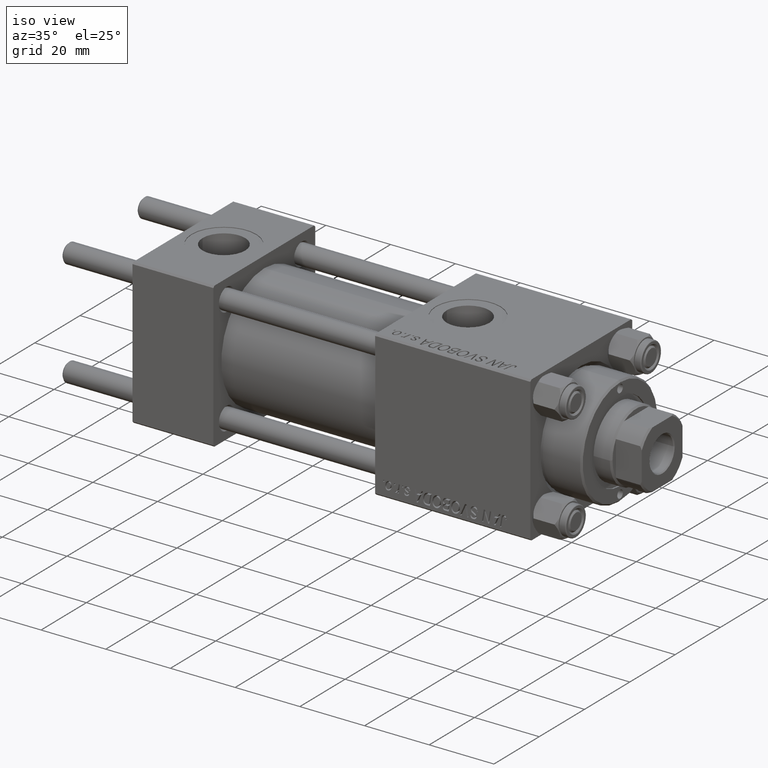
[diagram: clean part render]
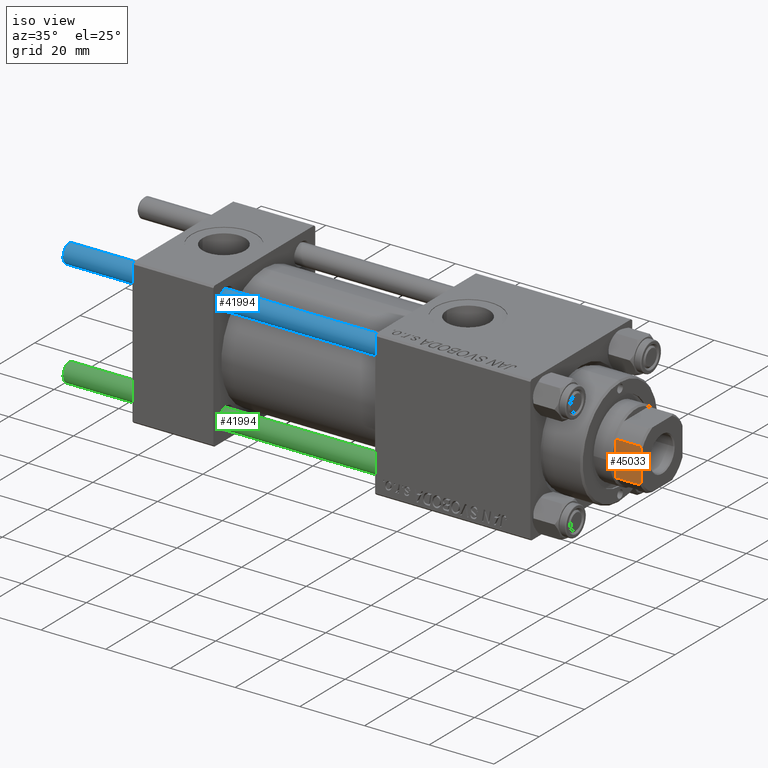
[diagram: same view with three faces highlighted in distinct colors, each labeled with its STEP entity id]
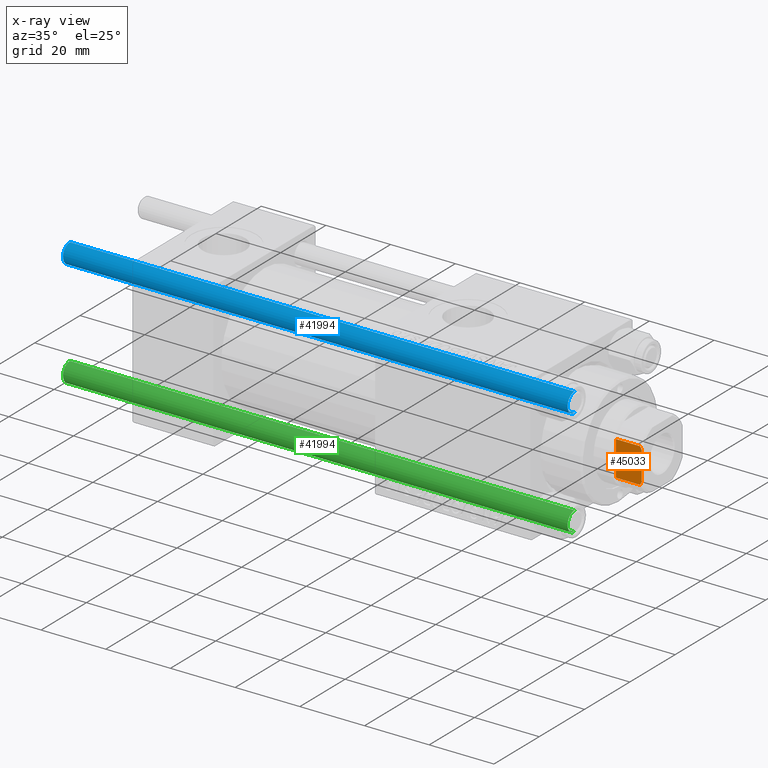
[diagram: x-ray of the same camera — body ghosted, the three highlighted faces saturated]
A machine part, iso view with three faces highlighted in distinct colors.
The next image is the same camera in x-ray (body ghosted, the three faces saturated) — at least one of them is partly hidden behind the body in this view.
Their STEP definitions:

[orange] entity #45033 — the highlighted planar face has unit normal (0, 1, 0).
#1934 = DIRECTION ( 'NONE',  ( -0.000000000000000000, -0.000000000000000000, 1.000000000000000000 ) ) ;
#2517 = CARTESIAN_POINT ( 'NONE',  ( 8.999999999999996447, 5.408326913195991459, 122.4999999999999716 ) ) ;
#2741 = ORIENTED_EDGE ( 'NONE', *, *, #45122, .T. ) ;
#3845 = ORIENTED_EDGE ( 'NONE', *, *, #50900, .F. ) ;
#5269 = VECTOR ( 'NONE', #15802, 1000.000000000000000 ) ;
#5454 = DIRECTION ( 'NONE',  ( -0.000000000000000000, -0.000000000000000000, 1.000000000000000000 ) ) ;
#6340 = ORIENTED_EDGE ( 'NONE', *, *, #34451, .T. ) ;
#7842 = ORIENTED_EDGE ( 'NONE', *, *, #28568, .F. ) ;
#7874 = VECTOR ( 'NONE', #41713, 1000.000000000000000 ) ;
#8446 = DIRECTION ( 'NONE',  ( 1.927470528863119049E-16, -1.000000000000000000, 0.000000000000000000 ) ) ;
#8863 = CARTESIAN_POINT ( 'NONE',  ( 8.999999999999996447, -5.408326913195990571, 115.0000000000000284 ) ) ;
#9763 = EDGE_CURVE ( 'NONE', #48207, #47753, #29159, .T. ) ;
#12382 = FACE_OUTER_BOUND ( 'NONE', #46642, .T. ) ;
#12596 = CARTESIAN_POINT ( 'NONE',  ( 8.999999999999996447, 5.408326913195991459, 115.0000000000000284 ) ) ;
#15802 = DIRECTION ( 'NONE',  ( -1.927470528863119049E-16, 1.000000000000000000, -0.000000000000000000 ) ) ;
#16819 = CARTESIAN_POINT ( 'NONE',  ( 8.999999999999998224, 4.358898943540600257, 123.0000000000000000 ) ) ;
#17267 = LINE ( 'NONE', #46175, #28041 ) ;
#19194 = VERTEX_POINT ( 'NONE', #45319 ) ;
#20221 = CARTESIAN_POINT ( 'NONE',  ( 8.999999999999998224, 4.358898943540600257, 123.0000000000000000 ) ) ;
#21453 = ORIENTED_EDGE ( 'NONE', *, *, #9763, .T. ) ;
#24864 = LINE ( 'NONE', #30609, #34371 ) ;
#26153 = B_SPLINE_CURVE_WITH_KNOTS ( 'NONE', 3,
 ( #29219, #49723, #46277, #42065 ),
 .UNSPECIFIED., .F., .F.,
 ( 4, 4 ),
 ( 0.000000000000000000, 0.001162453897363195177 ),
 .UNSPECIFIED. ) ;
#26885 = LINE ( 'NONE', #27144, #5269 ) ;
#27144 = CARTESIAN_POINT ( 'NONE',  ( 8.999999999999996447, 8.999999999999998224, 123.0000000000000000 ) ) ;
#28041 = VECTOR ( 'NONE', #5454, 1000.000000000000000 ) ;
#28438 = DIRECTION ( 'NONE',  ( -1.000000000000000000, -1.927470528863119049E-16, 0.000000000000000000 ) ) ;
#28568 = EDGE_CURVE ( 'NONE', #19194, #47753, #26885, .T. ) ;
#28674 = CARTESIAN_POINT ( 'NONE',  ( 8.999999999999998224, 4.714305797500204065, 122.8450817439748306 ) ) ;
#28937 = CARTESIAN_POINT ( 'NONE',  ( 8.999999999999996447, 5.408326913195991459, 122.4999999999999716 ) ) ;
#29159 = B_SPLINE_CURVE_WITH_KNOTS ( 'NONE', 3,
 ( #28937, #37087, #28674, #16819 ),
 .UNSPECIFIED., .F., .F.,
 ( 4, 4 ),
 ( 0.000000000000000000, 0.001162453897363273890 ),
 .UNSPECIFIED. ) ;
#29219 = CARTESIAN_POINT ( 'NONE',  ( 8.999999999999998224, -4.358898943540672200, 123.0000000000000000 ) ) ;
#30406 = LINE ( 'NONE', #41460, #7874 ) ;
#30609 = CARTESIAN_POINT ( 'NONE',  ( 8.999999999999996447, -5.408326913195990571, -0.001000000000001000089 ) ) ;
#30887 = AXIS2_PLACEMENT_3D ( 'NONE', #36061, #28438, #8446 ) ;
#33124 = CARTESIAN_POINT ( 'NONE',  ( 8.999999999999996447, -5.408326913195990571, 122.5000000000000000 ) ) ;
#34371 = VECTOR ( 'NONE', #1934, 1000.000000000000000 ) ;
#34410 = EDGE_CURVE ( 'NONE', #42559, #36438, #30406, .T. ) ;
#34451 = EDGE_CURVE ( 'NONE', #36438, #48207, #17267, .T. ) ;
#36061 = CARTESIAN_POINT ( 'NONE',  ( 8.999999999999996447, 8.999999999999998224, 123.0000000000000000 ) ) ;
#36351 = ORIENTED_EDGE ( 'NONE', *, *, #34410, .T. ) ;
#36438 = VERTEX_POINT ( 'NONE', #12596 ) ;
#37087 = CARTESIAN_POINT ( 'NONE',  ( 8.999999999999996447, 5.063687070142427693, 122.6775166608138932 ) ) ;
#41460 = CARTESIAN_POINT ( 'NONE',  ( 8.999999999999996447, 8.999999999999998224, 115.0000000000000000 ) ) ;
#41713 = DIRECTION ( 'NONE',  ( -1.927470528863119049E-16, 1.000000000000000000, -0.000000000000000000 ) ) ;
#42065 = CARTESIAN_POINT ( 'NONE',  ( 8.999999999999996447, -5.408326913195990571, 122.5000000000000000 ) ) ;
#42559 = VERTEX_POINT ( 'NONE', #8863 ) ;
#43121 = VERTEX_POINT ( 'NONE', #33124 ) ;
#44989 = PLANE ( 'NONE',  #30887 ) ;
#45033 = ADVANCED_FACE ( 'NONE', ( #12382 ), #44989, .F. ) ;
#45122 = EDGE_CURVE ( 'NONE', #19194, #43121, #26153, .T. ) ;
#45319 = CARTESIAN_POINT ( 'NONE',  ( 8.999999999999998224, -4.358898943540672200, 123.0000000000000000 ) ) ;
#46175 = CARTESIAN_POINT ( 'NONE',  ( 8.999999999999996447, 5.408326913195991459, -0.001000000000001000089 ) ) ;
#46277 = CARTESIAN_POINT ( 'NONE',  ( 9.000000000000000000, -5.063687070142444568, 122.6775166608139216 ) ) ;
#46642 = EDGE_LOOP ( 'NONE', ( #6340, #21453, #7842, #2741, #3845, #36351 ) ) ;
#47753 = VERTEX_POINT ( 'NONE', #20221 ) ;
#48207 = VERTEX_POINT ( 'NONE', #2517 ) ;
#49723 = CARTESIAN_POINT ( 'NONE',  ( 9.000000000000000000, -4.714305797500252027, 122.8450817439748448 ) ) ;
#50900 = EDGE_CURVE ( 'NONE', #42559, #43121, #24864, .T. ) ;

[blue] entity #41994 — the highlighted cylindrical surface (edge-blend (fillet) strip) has radius 3 mm, axis along (1, -0, 0).
#46 = EDGE_CURVE ( 'NONE', #40338, #33728, #46517, .T. ) ;
#4175 = ORIENTED_EDGE ( 'NONE', *, *, #10466, .F. ) ;
#4250 = DIRECTION ( 'NONE',  ( -0.000000000000000000, -0.000000000000000000, -1.000000000000000000 ) ) ;
#4292 = CIRCLE ( 'NONE', #32814, 3.000000000000000444 ) ;
#4408 = VECTOR ( 'NONE', #28742, 1000.000000000000000 ) ;
#6270 = ORIENTED_EDGE ( 'NONE', *, *, #23502, .T. ) ;
#8562 = EDGE_CURVE ( 'NONE', #48596, #40338, #35588, .T. ) ;
#9511 = DIRECTION ( 'NONE',  ( -0.000000000000000000, -0.000000000000000000, 1.000000000000000000 ) ) ;
#9581 = LINE ( 'NONE', #37461, #41546 ) ;
#10025 = CARTESIAN_POINT ( 'NONE',  ( 0.000000000000000000, 0.000000000000000000, 0.4999999999999726885 ) ) ;
#10058 = ORIENTED_EDGE ( 'NONE', *, *, #8562, .T. ) ;
#10466 = EDGE_CURVE ( 'NONE', #48596, #17580, #9581, .T. ) ;
#10497 = CARTESIAN_POINT ( 'NONE',  ( 3.000000000000000444, 3.673940397442060361E-16, 157.0000000000000000 ) ) ;
#12131 = FACE_OUTER_BOUND ( 'NONE', #13395, .T. ) ;
#12245 = CARTESIAN_POINT ( 'NONE',  ( -3.000000000000000444, 0.000000000000000000, 0.4999999999999726885 ) ) ;
#13395 = EDGE_LOOP ( 'NONE', ( #10058, #50425, #6270, #4175 ) ) ;
#17386 = DIRECTION ( 'NONE',  ( 1.000000000000000000, 0.000000000000000000, 0.000000000000000000 ) ) ;
#17580 = VERTEX_POINT ( 'NONE', #12245 ) ;
#18695 = CARTESIAN_POINT ( 'NONE',  ( 3.000000000000000444, 3.673940397442060361E-16, 156.5000000000000284 ) ) ;
#19608 = AXIS2_PLACEMENT_3D ( 'NONE', #30273, #21860, #17386 ) ;
#21411 = DIRECTION ( 'NONE',  ( -0.000000000000000000, -0.000000000000000000, -1.000000000000000000 ) ) ;
#21860 = DIRECTION ( 'NONE',  ( 0.000000000000000000, 0.000000000000000000, -1.000000000000000000 ) ) ;
#23502 = EDGE_CURVE ( 'NONE', #33728, #17580, #4292, .T. ) ;
#24236 = CYLINDRICAL_SURFACE ( 'NONE', #40039, 3.000000000000000444 ) ;
#28742 = DIRECTION ( 'NONE',  ( -0.000000000000000000, -0.000000000000000000, -1.000000000000000000 ) ) ;
#30273 = CARTESIAN_POINT ( 'NONE',  ( 0.000000000000000000, 0.000000000000000000, 156.5000000000000284 ) ) ;
#30530 = DIRECTION ( 'NONE',  ( 1.000000000000000000, 0.000000000000000000, 0.000000000000000000 ) ) ;
#32814 = AXIS2_PLACEMENT_3D ( 'NONE', #10025, #9511, #30530 ) ;
#33426 = DIRECTION ( 'NONE',  ( -1.000000000000000000, 0.000000000000000000, 0.000000000000000000 ) ) ;
#33728 = VERTEX_POINT ( 'NONE', #41059 ) ;
#35588 = CIRCLE ( 'NONE', #19608, 3.000000000000000444 ) ;
#37461 = CARTESIAN_POINT ( 'NONE',  ( -3.000000000000000444, 0.000000000000000000, 157.0000000000000000 ) ) ;
#40039 = AXIS2_PLACEMENT_3D ( 'NONE', #40261, #4250, #33426 ) ;
#40261 = CARTESIAN_POINT ( 'NONE',  ( 0.000000000000000000, 0.000000000000000000, 157.0000000000000000 ) ) ;
#40338 = VERTEX_POINT ( 'NONE', #18695 ) ;
#41059 = CARTESIAN_POINT ( 'NONE',  ( 3.000000000000000444, 3.673940397442060361E-16, 0.4999999999999726885 ) ) ;
#41546 = VECTOR ( 'NONE', #21411, 1000.000000000000000 ) ;
#41994 = ADVANCED_FACE ( 'NONE', ( #12131 ), #24236, .T. ) ;
#46517 = LINE ( 'NONE', #10497, #4408 ) ;
#48596 = VERTEX_POINT ( 'NONE', #51339 ) ;
#50425 = ORIENTED_EDGE ( 'NONE', *, *, #46, .T. ) ;
#51339 = CARTESIAN_POINT ( 'NONE',  ( -3.000000000000000444, 0.000000000000000000, 156.5000000000000284 ) ) ;

[green] entity #41994 — the highlighted cylindrical surface (edge-blend (fillet) strip) has radius 3 mm, axis along (-1, 0, 0).
#46 = EDGE_CURVE ( 'NONE', #40338, #33728, #46517, .T. ) ;
#4175 = ORIENTED_EDGE ( 'NONE', *, *, #10466, .F. ) ;
#4250 = DIRECTION ( 'NONE',  ( -0.000000000000000000, -0.000000000000000000, -1.000000000000000000 ) ) ;
#4292 = CIRCLE ( 'NONE', #32814, 3.000000000000000444 ) ;
#4408 = VECTOR ( 'NONE', #28742, 1000.000000000000000 ) ;
#6270 = ORIENTED_EDGE ( 'NONE', *, *, #23502, .T. ) ;
#8562 = EDGE_CURVE ( 'NONE', #48596, #40338, #35588, .T. ) ;
#9511 = DIRECTION ( 'NONE',  ( -0.000000000000000000, -0.000000000000000000, 1.000000000000000000 ) ) ;
#9581 = LINE ( 'NONE', #37461, #41546 ) ;
#10025 = CARTESIAN_POINT ( 'NONE',  ( 0.000000000000000000, 0.000000000000000000, 0.4999999999999726885 ) ) ;
#10058 = ORIENTED_EDGE ( 'NONE', *, *, #8562, .T. ) ;
#10466 = EDGE_CURVE ( 'NONE', #48596, #17580, #9581, .T. ) ;
#10497 = CARTESIAN_POINT ( 'NONE',  ( 3.000000000000000444, 3.673940397442060361E-16, 157.0000000000000000 ) ) ;
#12131 = FACE_OUTER_BOUND ( 'NONE', #13395, .T. ) ;
#12245 = CARTESIAN_POINT ( 'NONE',  ( -3.000000000000000444, 0.000000000000000000, 0.4999999999999726885 ) ) ;
#13395 = EDGE_LOOP ( 'NONE', ( #10058, #50425, #6270, #4175 ) ) ;
#17386 = DIRECTION ( 'NONE',  ( 1.000000000000000000, 0.000000000000000000, 0.000000000000000000 ) ) ;
#17580 = VERTEX_POINT ( 'NONE', #12245 ) ;
#18695 = CARTESIAN_POINT ( 'NONE',  ( 3.000000000000000444, 3.673940397442060361E-16, 156.5000000000000284 ) ) ;
#19608 = AXIS2_PLACEMENT_3D ( 'NONE', #30273, #21860, #17386 ) ;
#21411 = DIRECTION ( 'NONE',  ( -0.000000000000000000, -0.000000000000000000, -1.000000000000000000 ) ) ;
#21860 = DIRECTION ( 'NONE',  ( 0.000000000000000000, 0.000000000000000000, -1.000000000000000000 ) ) ;
#23502 = EDGE_CURVE ( 'NONE', #33728, #17580, #4292, .T. ) ;
#24236 = CYLINDRICAL_SURFACE ( 'NONE', #40039, 3.000000000000000444 ) ;
#28742 = DIRECTION ( 'NONE',  ( -0.000000000000000000, -0.000000000000000000, -1.000000000000000000 ) ) ;
#30273 = CARTESIAN_POINT ( 'NONE',  ( 0.000000000000000000, 0.000000000000000000, 156.5000000000000284 ) ) ;
#30530 = DIRECTION ( 'NONE',  ( 1.000000000000000000, 0.000000000000000000, 0.000000000000000000 ) ) ;
#32814 = AXIS2_PLACEMENT_3D ( 'NONE', #10025, #9511, #30530 ) ;
#33426 = DIRECTION ( 'NONE',  ( -1.000000000000000000, 0.000000000000000000, 0.000000000000000000 ) ) ;
#33728 = VERTEX_POINT ( 'NONE', #41059 ) ;
#35588 = CIRCLE ( 'NONE', #19608, 3.000000000000000444 ) ;
#37461 = CARTESIAN_POINT ( 'NONE',  ( -3.000000000000000444, 0.000000000000000000, 157.0000000000000000 ) ) ;
#40039 = AXIS2_PLACEMENT_3D ( 'NONE', #40261, #4250, #33426 ) ;
#40261 = CARTESIAN_POINT ( 'NONE',  ( 0.000000000000000000, 0.000000000000000000, 157.0000000000000000 ) ) ;
#40338 = VERTEX_POINT ( 'NONE', #18695 ) ;
#41059 = CARTESIAN_POINT ( 'NONE',  ( 3.000000000000000444, 3.673940397442060361E-16, 0.4999999999999726885 ) ) ;
#41546 = VECTOR ( 'NONE', #21411, 1000.000000000000000 ) ;
#41994 = ADVANCED_FACE ( 'NONE', ( #12131 ), #24236, .T. ) ;
#46517 = LINE ( 'NONE', #10497, #4408 ) ;
#48596 = VERTEX_POINT ( 'NONE', #51339 ) ;
#50425 = ORIENTED_EDGE ( 'NONE', *, *, #46, .T. ) ;
#51339 = CARTESIAN_POINT ( 'NONE',  ( -3.000000000000000444, 0.000000000000000000, 156.5000000000000284 ) ) ;